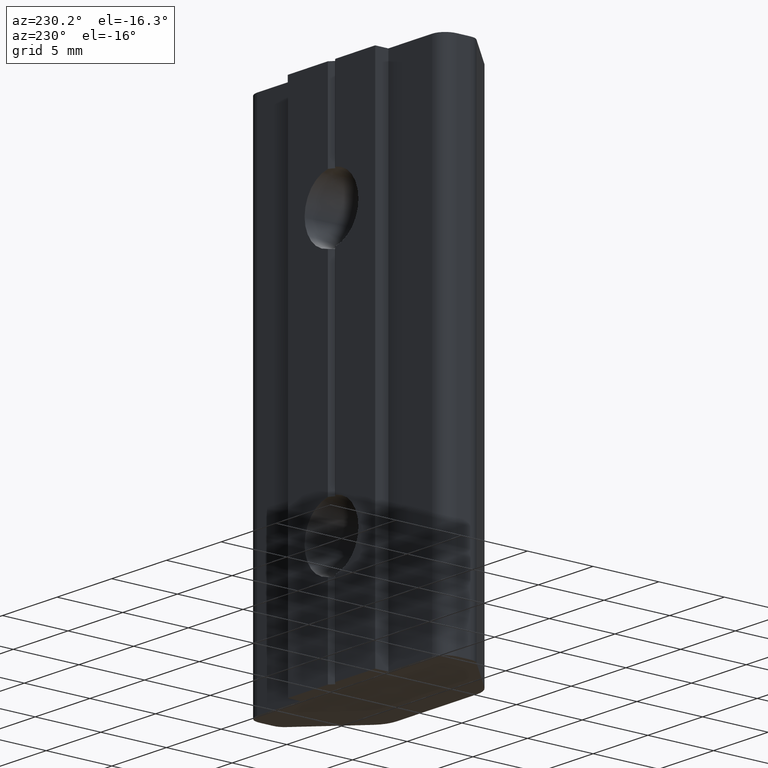
[diagram: clean part render]
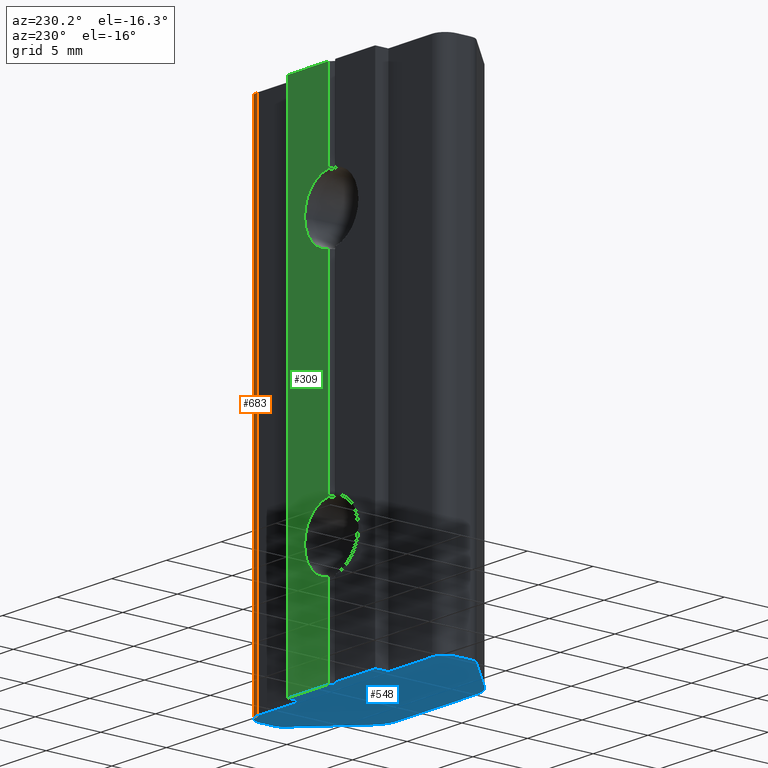
[diagram: same view with three faces highlighted in distinct colors, each labeled with its STEP entity id]
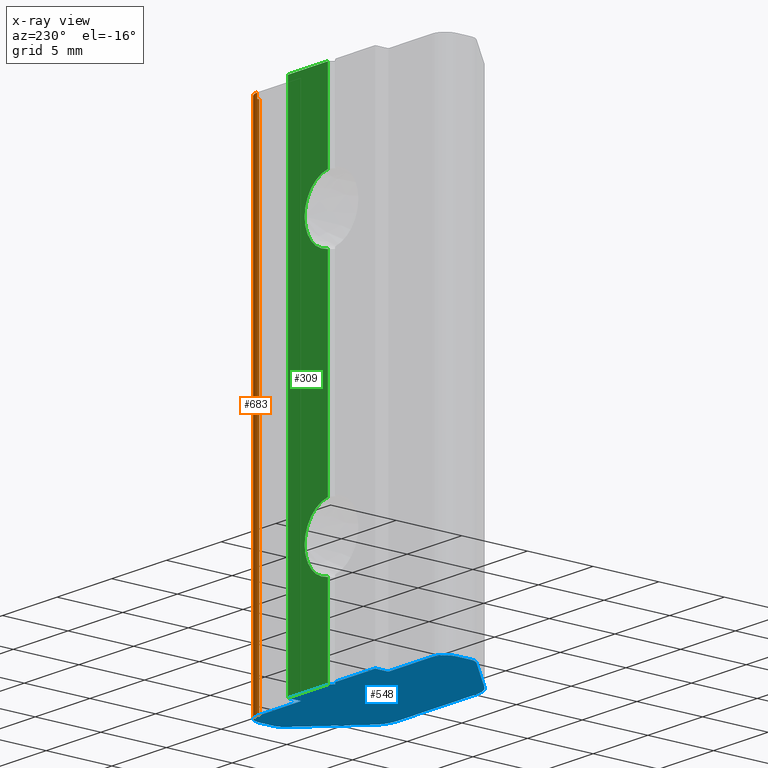
[diagram: x-ray of the same camera — body ghosted, the three highlighted faces saturated]
A machine part, auxiliary view with three faces highlighted in distinct colors.
The next image is the same camera in x-ray (body ghosted, the three faces saturated) — at least one of them is partly hidden behind the body in this view.
Their STEP definitions:

[orange] entity #683 — the highlighted cylindrical surface (edge-blend (fillet) strip) has radius 1 mm, axis along (0, 0, 1).
#446=CARTESIAN_POINT('',(8.218338135971266,3.750243613001743,-19.0));
#447=VERTEX_POINT('',#446);
#454=CARTESIAN_POINT('',(9.218338135971266,2.750243613001743,-19.0));
#455=VERTEX_POINT('',#454);
#456=CARTESIAN_POINT('',(8.218338131920138,2.750243608950616,-19.0));
#457=DIRECTION('',(0.0,0.0,1.0));
#458=DIRECTION('',(-1.0,-4.051127E-009,0.0));
#459=AXIS2_PLACEMENT_3D('',#456,#457,#458);
#460=CIRCLE('',#459,1.000000004051127);
#461=EDGE_CURVE('',#455,#447,#460,.T.);
#640=CARTESIAN_POINT('',(8.218338135971266,3.750243613001743,19.0));
#641=VERTEX_POINT('',#640);
#648=CARTESIAN_POINT('',(8.218338135971266,3.750243613001743,19.0));
#649=DIRECTION('',(0.0,0.0,-1.0));
#650=VECTOR('',#649,38.0);
#651=LINE('',#648,#650);
#652=EDGE_CURVE('',#641,#447,#651,.T.);
#659=CARTESIAN_POINT('',(8.218338131920138,2.750243608950616,0.0));
#660=DIRECTION('',(0.0,0.0,1.0));
#661=DIRECTION('',(-1.0,-4.051127E-009,0.0));
#662=AXIS2_PLACEMENT_3D('',#659,#660,#661);
#663=CYLINDRICAL_SURFACE('',#662,1.000000004051127);
#664=CARTESIAN_POINT('',(9.218338135971266,2.750243613001743,19.0));
#665=VERTEX_POINT('',#664);
#666=CARTESIAN_POINT('',(8.218338131920138,2.750243608950616,19.0));
#667=DIRECTION('',(0.0,0.0,-1.0));
#668=DIRECTION('',(-1.0,-4.051127E-009,0.0));
#669=AXIS2_PLACEMENT_3D('',#666,#667,#668);
#670=CIRCLE('',#669,1.000000004051127);
#671=EDGE_CURVE('',#641,#665,#670,.T.);
#672=ORIENTED_EDGE('',*,*,#671,.T.);
#673=CARTESIAN_POINT('',(9.218338135971266,2.750243613001743,19.0));
#674=DIRECTION('',(0.0,0.0,-1.0));
#675=VECTOR('',#674,38.0);
#676=LINE('',#673,#675);
#677=EDGE_CURVE('',#665,#455,#676,.T.);
#678=ORIENTED_EDGE('',*,*,#677,.T.);
#679=ORIENTED_EDGE('',*,*,#461,.T.);
#680=ORIENTED_EDGE('',*,*,#652,.F.);
#681=EDGE_LOOP('',(#672,#678,#679,#680));
#682=FACE_OUTER_BOUND('',#681,.T.);
#683=ADVANCED_FACE('',(#682),#663,.T.);

[blue] entity #548 — the highlighted planar face has unit normal (0, 0, 1).
#285=CARTESIAN_POINT('',(4.218338135971266,4.750243613001743,-19.0));
#286=VERTEX_POINT('',#285);
#293=CARTESIAN_POINT('',(0.546678795971260,4.750243613001743,-19.0));
#294=VERTEX_POINT('',#293);
#295=CARTESIAN_POINT('',(4.218338135971266,4.750243613001743,-19.0));
#296=DIRECTION('',(-1.0,0.0,0.0));
#297=VECTOR('',#296,3.671659340000005);
#298=LINE('',#295,#297);
#299=EDGE_CURVE('',#286,#294,#298,.T.);
#392=CARTESIAN_POINT('',(0.218334537956858,1.147857091245414,-19.0));
#393=DIRECTION('',(0.0,0.0,1.0));
#394=DIRECTION('',(1.0,0.0,0.0));
#395=AXIS2_PLACEMENT_3D('',#392,#393,#394);
#396=PLANE('',#395);
#397=CARTESIAN_POINT('',(-3.781661864028735,3.750243613001743,-19.0));
#398=VERTEX_POINT('',#397);
#399=CARTESIAN_POINT('',(-7.781661864028735,3.750243613001743,-19.0));
#400=VERTEX_POINT('',#399);
#401=CARTESIAN_POINT('',(-3.781661864028735,3.750243613001743,-19.0));
#402=DIRECTION('',(-1.0,0.0,0.0));
#403=VECTOR('',#402,4.0);
#404=LINE('',#401,#403);
#405=EDGE_CURVE('',#398,#400,#404,.T.);
#406=ORIENTED_EDGE('',*,*,#405,.F.);
#407=CARTESIAN_POINT('',(-3.781661864028735,4.750243613001743,-19.0));
#408=VERTEX_POINT('',#407);
#409=CARTESIAN_POINT('',(-3.781661864028735,4.750243613001743,-19.0));
#410=DIRECTION('',(0.0,-1.0,0.0));
#411=VECTOR('',#410,1.0);
#412=LINE('',#409,#411);
#413=EDGE_CURVE('',#408,#398,#412,.T.);
#414=ORIENTED_EDGE('',*,*,#413,.F.);
#415=CARTESIAN_POINT('',(-0.124948554028734,4.750243613001743,-19.0));
#416=VERTEX_POINT('',#415);
#417=CARTESIAN_POINT('',(-0.124948554028733,4.750243613001743,-19.0));
#418=DIRECTION('',(-1.0,0.0,0.0));
#419=VECTOR('',#418,3.656713310000001);
#420=LINE('',#417,#419);
#421=EDGE_CURVE('',#416,#408,#420,.T.);
#422=ORIENTED_EDGE('',*,*,#421,.F.);
#423=CARTESIAN_POINT('',(0.218338135971266,4.475982393001743,-19.0));
#424=VERTEX_POINT('',#423);
#425=CARTESIAN_POINT('',(0.218338135971266,4.475982393001743,-19.0));
#426=DIRECTION('',(-0.781277336056361,0.624184046707921,0.0));
#427=VECTOR('',#426,0.439391588821457);
#428=LINE('',#425,#427);
#429=EDGE_CURVE('',#424,#416,#428,.T.);
#430=ORIENTED_EDGE('',*,*,#429,.F.);
#431=CARTESIAN_POINT('',(0.546678795971260,4.750243613001743,-19.0));
#432=DIRECTION('',(-0.767480441312735,-0.641072361128141,0.0));
#433=VECTOR('',#432,0.427816322508995);
#434=LINE('',#431,#433);
#435=EDGE_CURVE('',#294,#424,#434,.T.);
#436=ORIENTED_EDGE('',*,*,#435,.F.);
#437=ORIENTED_EDGE('',*,*,#299,.F.);
#438=CARTESIAN_POINT('',(4.218338135971266,3.750243613001743,-19.0));
#439=VERTEX_POINT('',#438);
#440=CARTESIAN_POINT('',(4.218338135971266,3.750243613001743,-19.0));
#441=DIRECTION('',(0.0,1.0,0.0));
#442=VECTOR('',#441,1.000000000000000);
#443=LINE('',#440,#442);
#444=EDGE_CURVE('',#439,#286,#443,.T.);
#445=ORIENTED_EDGE('',*,*,#444,.F.);
#446=CARTESIAN_POINT('',(8.218338135971266,3.750243613001743,-19.0));
#447=VERTEX_POINT('',#446);
#448=CARTESIAN_POINT('',(8.218338135971266,3.750243613001743,-19.0));
#449=DIRECTION('',(-1.0,0.0,0.0));
#450=VECTOR('',#449,4.0);
#451=LINE('',#448,#450);
#452=EDGE_CURVE('',#447,#439,#451,.T.);
#453=ORIENTED_EDGE('',*,*,#452,.F.);
#454=CARTESIAN_POINT('',(9.218338135971266,2.750243613001743,-19.0));
#455=VERTEX_POINT('',#454);
#456=CARTESIAN_POINT('',(8.218338131920138,2.750243608950616,-19.0));
#457=DIRECTION('',(0.0,0.0,1.0));
#458=DIRECTION('',(-1.0,-4.051127E-009,0.0));
#459=AXIS2_PLACEMENT_3D('',#456,#457,#458);
#460=CIRCLE('',#459,1.000000004051127);
#461=EDGE_CURVE('',#455,#447,#460,.T.);
#462=ORIENTED_EDGE('',*,*,#461,.F.);
#463=CARTESIAN_POINT('',(9.218338135971266,1.664457173001750,-19.0));
#464=VERTEX_POINT('',#463);
#465=CARTESIAN_POINT('',(9.218338135971266,1.664457173001751,-19.0));
#466=DIRECTION('',(0.0,1.0,0.0));
#467=VECTOR('',#466,1.085786439999993);
#468=LINE('',#465,#467);
#469=EDGE_CURVE('',#464,#455,#468,.T.);
#470=ORIENTED_EDGE('',*,*,#469,.F.);
#471=CARTESIAN_POINT('',(8.925444915971269,0.957350393001747,-19.0));
#472=VERTEX_POINT('',#471);
#473=CARTESIAN_POINT('',(8.218338148980866,1.664457169986085,-19.0));
#474=DIRECTION('',(0.0,0.0,1.0));
#475=DIRECTION('',(-0.707106776189580,0.707106786183515,0.0));
#476=AXIS2_PLACEMENT_3D('',#473,#474,#475);
#477=CIRCLE('',#476,0.999999986990400);
#478=EDGE_CURVE('',#472,#464,#477,.T.);
#479=ORIENTED_EDGE('',*,*,#478,.F.);
#480=CARTESIAN_POINT('',(5.304124575971273,-2.663969946998237,-19.0));
#481=VERTEX_POINT('',#480);
#482=CARTESIAN_POINT('',(5.304124575971271,-2.663969946998237,-19.0));
#483=DIRECTION('',(0.707106781186549,0.707106781186546,0.0));
#484=VECTOR('',#483,5.121320338525535);
#485=LINE('',#482,#484);
#486=EDGE_CURVE('',#481,#472,#485,.T.);
#487=ORIENTED_EDGE('',*,*,#486,.F.);
#488=CARTESIAN_POINT('',(3.889911015971265,-3.249756386998257,-19.0));
#489=VERTEX_POINT('',#488);
#490=CARTESIAN_POINT('',(3.889911022002561,-1.249756413017444,-19.0));
#491=DIRECTION('',(0.0,0.0,1.0));
#492=DIRECTION('',(3.015648E-009,1.0,0.0));
#493=AXIS2_PLACEMENT_3D('',#490,#491,#492);
#494=CIRCLE('',#493,1.999999973980814);
#495=EDGE_CURVE('',#489,#481,#494,.T.);
#496=ORIENTED_EDGE('',*,*,#495,.F.);
#497=CARTESIAN_POINT('',(-3.453234744028734,-3.249756386998257,-19.0));
#498=VERTEX_POINT('',#497);
#499=CARTESIAN_POINT('',(-3.453234744028734,-3.249756386998257,-19.0));
#500=DIRECTION('',(1.0,0.0,0.0));
#501=VECTOR('',#500,7.343145759999999);
#502=LINE('',#499,#501);
#503=EDGE_CURVE('',#498,#489,#502,.T.);
#504=ORIENTED_EDGE('',*,*,#503,.F.);
#505=CARTESIAN_POINT('',(-4.867448304028741,-2.663969946998237,-19.0));
#506=VERTEX_POINT('',#505);
#507=CARTESIAN_POINT('',(-3.453234750060030,-1.249756413017444,-19.0));
#508=DIRECTION('',(0.0,0.0,1.0));
#509=DIRECTION('',(0.707106786183527,0.707106776189568,0.0));
#510=AXIS2_PLACEMENT_3D('',#507,#508,#509);
#511=CIRCLE('',#510,1.999999973980813);
#512=EDGE_CURVE('',#506,#498,#511,.T.);
#513=ORIENTED_EDGE('',*,*,#512,.F.);
#514=CARTESIAN_POINT('',(-8.488768644028738,0.957350393001747,-19.0));
#515=VERTEX_POINT('',#514);
#516=CARTESIAN_POINT('',(-8.488768644028738,0.957350393001748,-19.0));
#517=DIRECTION('',(0.707106781186549,-0.707106781186546,0.0));
#518=VECTOR('',#517,5.121320338525535);
#519=LINE('',#516,#518);
#520=EDGE_CURVE('',#515,#506,#519,.T.);
#521=ORIENTED_EDGE('',*,*,#520,.F.);
#522=CARTESIAN_POINT('',(-8.781661864028735,1.664457173001751,-19.0));
#523=VERTEX_POINT('',#522);
#524=CARTESIAN_POINT('',(-7.781661877038335,1.664457169986085,-19.0));
#525=DIRECTION('',(0.0,0.0,1.0));
#526=DIRECTION('',(1.0,-3.015666E-009,0.0));
#527=AXIS2_PLACEMENT_3D('',#524,#525,#526);
#528=CIRCLE('',#527,0.999999986990400);
#529=EDGE_CURVE('',#523,#515,#528,.T.);
#530=ORIENTED_EDGE('',*,*,#529,.F.);
#531=CARTESIAN_POINT('',(-8.781661864028735,2.750243613001743,-19.0));
#532=VERTEX_POINT('',#531);
#533=CARTESIAN_POINT('',(-8.781661864028735,2.750243613001743,-19.0));
#534=DIRECTION('',(0.0,-1.0,0.0));
#535=VECTOR('',#534,1.085786439999993);
#536=LINE('',#533,#535);
#537=EDGE_CURVE('',#532,#523,#536,.T.);
#538=ORIENTED_EDGE('',*,*,#537,.F.);
#539=CARTESIAN_POINT('',(-7.781661859977609,2.750243608950616,-19.0));
#540=DIRECTION('',(0.0,0.0,1.0));
#541=DIRECTION('',(4.051126E-009,-1.0,0.0));
#542=AXIS2_PLACEMENT_3D('',#539,#540,#541);
#543=CIRCLE('',#542,1.000000004051127);
#544=EDGE_CURVE('',#400,#532,#543,.T.);
#545=ORIENTED_EDGE('',*,*,#544,.F.);
#546=EDGE_LOOP('',(#406,#414,#422,#430,#436,#437,#445,#453,#462,#470,#479,#487,#496,#504,#513,#521,#530,#538,#545));
#547=FACE_OUTER_BOUND('',#546,.T.);
#548=ADVANCED_FACE('',(#547),#396,.F.);

[green] entity #309 — the highlighted planar face has unit normal (0, 1, 0).
#114=CARTESIAN_POINT('',(0.546678795971260,4.750243613001743,-7.563524130841683));
#115=VERTEX_POINT('',#114);
#123=CARTESIAN_POINT('',(0.546678795971260,4.750243613001743,-12.436475869158311));
#124=VERTEX_POINT('',#123);
#125=CARTESIAN_POINT('',(0.218338135971265,4.750243613001743,-9.999999999999998));
#126=DIRECTION('',(0.0,-1.0,0.0));
#127=DIRECTION('',(1.0,0.0,0.0));
#128=AXIS2_PLACEMENT_3D('',#125,#126,#127);
#129=CIRCLE('',#128,2.458500000000000);
#130=EDGE_CURVE('',#124,#115,#129,.T.);
#208=CARTESIAN_POINT('',(0.546678795971260,4.750243613001743,12.436475869158315));
#209=VERTEX_POINT('',#208);
#217=CARTESIAN_POINT('',(0.546678795971260,4.750243613001743,7.563524130841684));
#218=VERTEX_POINT('',#217);
#219=CARTESIAN_POINT('',(0.218338135971265,4.750243613001743,10.0));
#220=DIRECTION('',(0.0,-1.0,0.0));
#221=DIRECTION('',(1.0,0.0,0.0));
#222=AXIS2_PLACEMENT_3D('',#219,#220,#221);
#223=CIRCLE('',#222,2.458500000000000);
#224=EDGE_CURVE('',#218,#209,#223,.T.);
#256=CARTESIAN_POINT('',(0.546678795971260,4.750243613001743,0.0));
#257=DIRECTION('',(0.0,1.0,0.0));
#258=DIRECTION('',(0.0,0.0,1.0));
#259=AXIS2_PLACEMENT_3D('',#256,#257,#258);
#260=PLANE('',#259);
#261=ORIENTED_EDGE('',*,*,#130,.T.);
#262=CARTESIAN_POINT('',(0.546678795971260,4.750243613001743,7.563524130841684));
#263=DIRECTION('',(0.0,0.0,-1.0));
#264=VECTOR('',#263,15.127048261683367);
#265=LINE('',#262,#264);
#266=EDGE_CURVE('',#218,#115,#265,.T.);
#267=ORIENTED_EDGE('',*,*,#266,.F.);
#268=ORIENTED_EDGE('',*,*,#224,.T.);
#269=CARTESIAN_POINT('',(0.546678795971260,4.750243613001743,19.0));
#270=VERTEX_POINT('',#269);
#271=CARTESIAN_POINT('',(0.546678795971260,4.750243613001743,19.0));
#272=DIRECTION('',(0.0,0.0,-1.0));
#273=VECTOR('',#272,6.563524130841685);
#274=LINE('',#271,#273);
#275=EDGE_CURVE('',#270,#209,#274,.T.);
#276=ORIENTED_EDGE('',*,*,#275,.F.);
#277=CARTESIAN_POINT('',(4.218338135971266,4.750243613001743,19.0));
#278=VERTEX_POINT('',#277);
#279=CARTESIAN_POINT('',(0.546678795971260,4.750243613001743,19.0));
#280=DIRECTION('',(1.0,0.0,0.0));
#281=VECTOR('',#280,3.671659340000005);
#282=LINE('',#279,#281);
#283=EDGE_CURVE('',#270,#278,#282,.T.);
#284=ORIENTED_EDGE('',*,*,#283,.T.);
#285=CARTESIAN_POINT('',(4.218338135971266,4.750243613001743,-19.0));
#286=VERTEX_POINT('',#285);
#287=CARTESIAN_POINT('',(4.218338135971266,4.750243613001743,19.0));
#288=DIRECTION('',(0.0,0.0,-1.0));
#289=VECTOR('',#288,38.0);
#290=LINE('',#287,#289);
#291=EDGE_CURVE('',#278,#286,#290,.T.);
#292=ORIENTED_EDGE('',*,*,#291,.T.);
#293=CARTESIAN_POINT('',(0.546678795971260,4.750243613001743,-19.0));
#294=VERTEX_POINT('',#293);
#295=CARTESIAN_POINT('',(4.218338135971266,4.750243613001743,-19.0));
#296=DIRECTION('',(-1.0,0.0,0.0));
#297=VECTOR('',#296,3.671659340000005);
#298=LINE('',#295,#297);
#299=EDGE_CURVE('',#286,#294,#298,.T.);
#300=ORIENTED_EDGE('',*,*,#299,.T.);
#301=CARTESIAN_POINT('',(0.546678795971260,4.750243613001743,-12.436475869158311));
#302=DIRECTION('',(0.0,0.0,-1.0));
#303=VECTOR('',#302,6.563524130841689);
#304=LINE('',#301,#303);
#305=EDGE_CURVE('',#124,#294,#304,.T.);
#306=ORIENTED_EDGE('',*,*,#305,.F.);
#307=EDGE_LOOP('',(#261,#267,#268,#276,#284,#292,#300,#306));
#308=FACE_OUTER_BOUND('',#307,.T.);
#309=ADVANCED_FACE('',(#308),#260,.T.);